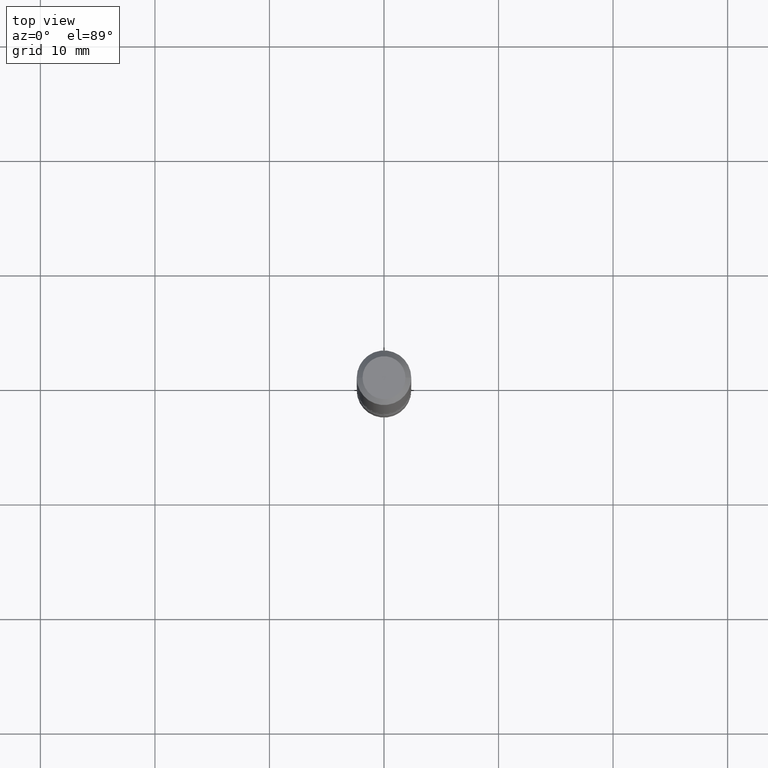
[diagram: clean part render]
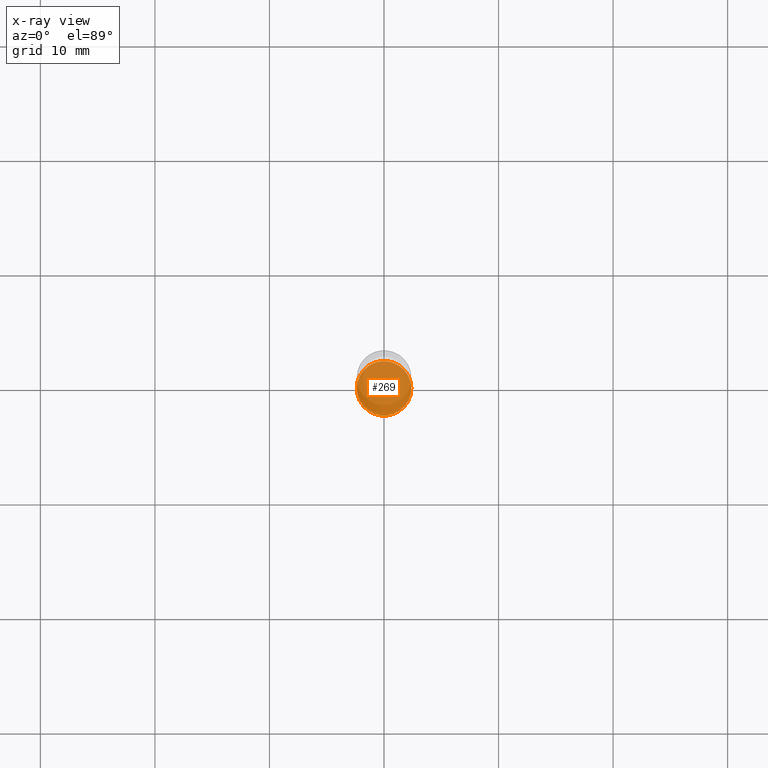
[diagram: x-ray — body ghosted, one internal face saturated and labeled with its STEP entity id]
A machine part, top view, then the same camera in x-ray: the body is ghosted and one INTERNAL B-rep face — a face not visible from any outside direction — is saturated and labeled: STEP entity #269.
In plain terms, the highlighted planar face has unit normal (0, -0, -1).
Its self-contained STEP definition (entity closure, byte-faithful):
#4 = VERTEX_POINT ( 'NONE', #237 ) ;
#12 = DIRECTION ( 'NONE',  ( -2.445468806185136597E-29, 3.491481338843145583E-15, 1.000000000000000000 ) ) ;
#13 = DIRECTION ( 'NONE',  ( 2.438088387897960049E-29, -3.491481338843145188E-15, -1.000000000000000000 ) ) ;
#28 = DIRECTION ( 'NONE',  ( -2.445468806185136597E-29, 3.491481338843145583E-15, 1.000000000000000000 ) ) ;
#31 = CARTESIAN_POINT ( 'NONE',  ( 5.196621213143415268E-29, -7.419397845041685201E-15, -2.125000000000000000 ) ) ;
#33 = CIRCLE ( 'NONE', #234, 0.09375000000000002776 ) ;
#54 = CARTESIAN_POINT ( 'NONE',  ( 8.726388948129611336E-30, -1.361158663068067946E-14, -2.125000000000000000 ) ) ;
#80 = ORIENTED_EDGE ( 'NONE', *, *, #321, .T. ) ;
#138 = PLANE ( 'NONE',  #151 ) ;
#151 = AXIS2_PLACEMENT_3D ( 'NONE', #54, #13, #230 ) ;
#188 = AXIS2_PLACEMENT_3D ( 'NONE', #31, #28, #204 ) ;
#204 = DIRECTION ( 'NONE',  ( 1.000000000000000000, -6.982962677686270655E-15, 0.000000000000000000 ) ) ;
#230 = DIRECTION ( 'NONE',  ( -1.000000000000000000, 6.982962677686265922E-15, -4.876176775795935793E-29 ) ) ;
#234 = AXIS2_PLACEMENT_3D ( 'NONE', #465, #12, #528 ) ;
#237 = CARTESIAN_POINT ( 'NONE',  ( -0.09375000000000002776, -7.390459374605464534E-15, -2.125000000000000000 ) ) ;
#269 = ADVANCED_FACE ( 'NONE', ( #352 ), #138, .F. ) ;
#296 = EDGE_LOOP ( 'NONE', ( #463, #80 ) ) ;
#321 = EDGE_CURVE ( 'NONE', #4, #456, #541, .T. ) ;
#352 = FACE_OUTER_BOUND ( 'NONE', #296, .T. ) ;
#361 = EDGE_CURVE ( 'NONE', #456, #4, #33, .T. ) ;
#456 = VERTEX_POINT ( 'NONE', #507 ) ;
#463 = ORIENTED_EDGE ( 'NONE', *, *, #361, .T. ) ;
#465 = CARTESIAN_POINT ( 'NONE',  ( 5.196621213143415268E-29, -7.419397845041685201E-15, -2.125000000000000000 ) ) ;
#507 = CARTESIAN_POINT ( 'NONE',  ( 0.09375000000000002776, -8.074050596074771916E-15, -2.125000000000000000 ) ) ;
#528 = DIRECTION ( 'NONE',  ( 1.000000000000000000, -6.982962677686270655E-15, 0.000000000000000000 ) ) ;
#541 = CIRCLE ( 'NONE', #188, 0.09375000000000002776 ) ;